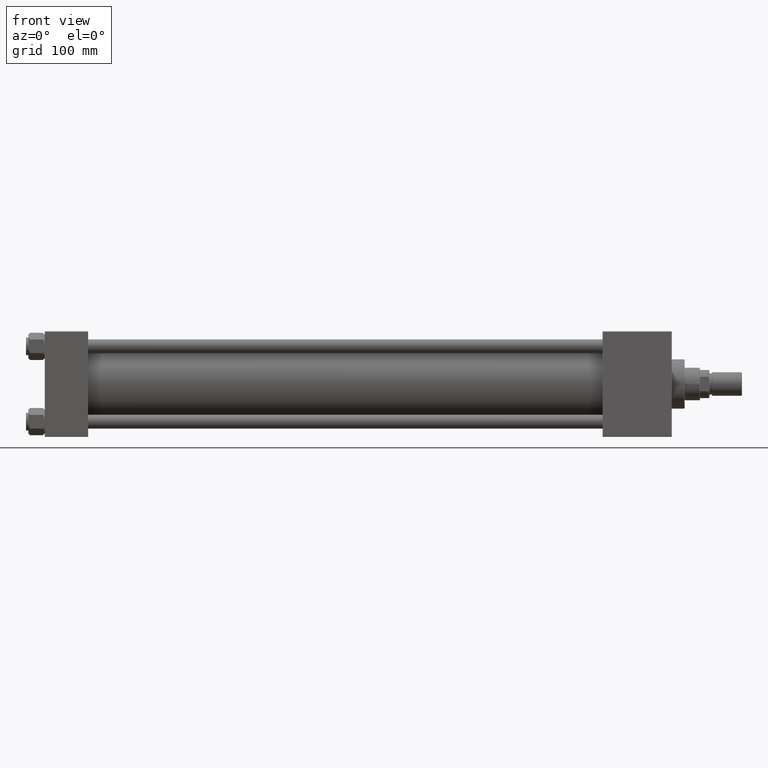
[diagram: clean part render]
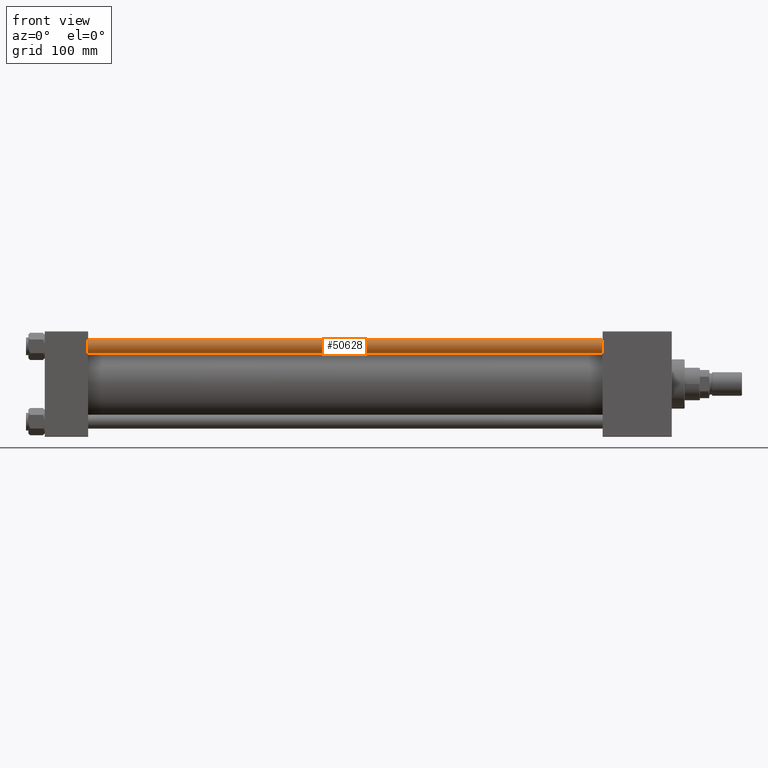
[diagram: same view with one face highlighted and labeled with its STEP entity id]
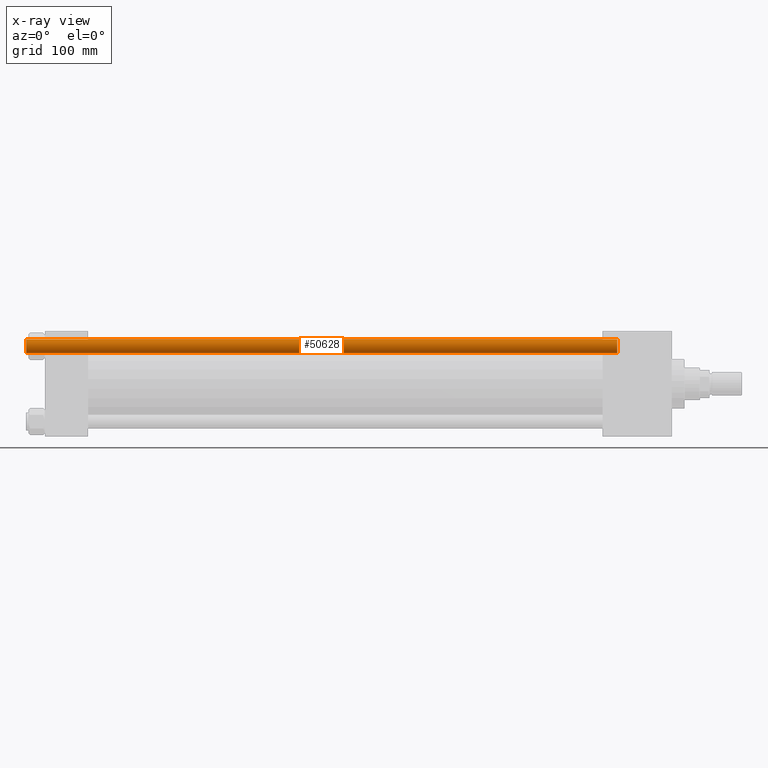
[diagram: x-ray of the same camera — body ghosted, the highlighted face saturated]
A machine part, front view. The second image highlights one B-rep face of the part: STEP entity #50628.
The next image is the same camera in x-ray: the body ghosted, the highlighted face saturated — about 0% of this face is hidden behind the body in this view.
In plain terms, the highlighted cylindrical surface (edge-blend (fillet) strip) has radius 6 mm, axis along (1, 0, -0).
Its self-contained STEP definition (entity closure, byte-faithful):
#40 = AXIS2_PLACEMENT_3D ( 'NONE', #12795, #40783, #21535 ) ;
#1010 = CARTESIAN_POINT ( 'NONE',  ( 0.000000000000000000, 0.000000000000000000, 0.5000000000000559552 ) ) ;
#1730 = VERTEX_POINT ( 'NONE', #18907 ) ;
#2468 = VERTEX_POINT ( 'NONE', #31097 ) ;
#3396 = DIRECTION ( 'NONE',  ( -0.000000000000000000, -0.000000000000000000, -1.000000000000000000 ) ) ;
#5619 = CARTESIAN_POINT ( 'NONE',  ( 6.000000000000000888, 7.347880794884120722E-16, 504.5000000000001705 ) ) ;
#12795 = CARTESIAN_POINT ( 'NONE',  ( 0.000000000000000000, 0.000000000000000000, 505.0000000000000000 ) ) ;
#12946 = CARTESIAN_POINT ( 'NONE',  ( 0.000000000000000000, 0.000000000000000000, 504.5000000000001705 ) ) ;
#15240 = EDGE_CURVE ( 'NONE', #25355, #1730, #16022, .T. ) ;
#16022 = LINE ( 'NONE', #23239, #29972 ) ;
#16371 = AXIS2_PLACEMENT_3D ( 'NONE', #12946, #28617, #36301 ) ;
#18907 = CARTESIAN_POINT ( 'NONE',  ( 6.000000000000000888, 7.347880794884120722E-16, 0.5000000000000559552 ) ) ;
#21535 = DIRECTION ( 'NONE',  ( -1.000000000000000000, 0.000000000000000000, 0.000000000000000000 ) ) ;
#21631 = VERTEX_POINT ( 'NONE', #41566 ) ;
#22502 = ORIENTED_EDGE ( 'NONE', *, *, #25199, .T. ) ;
#23239 = CARTESIAN_POINT ( 'NONE',  ( 6.000000000000000888, 7.347880794884120722E-16, 505.0000000000000000 ) ) ;
#25199 = EDGE_CURVE ( 'NONE', #1730, #2468, #48232, .T. ) ;
#25355 = VERTEX_POINT ( 'NONE', #5619 ) ;
#26306 = EDGE_LOOP ( 'NONE', ( #29273, #43478, #22502, #42675 ) ) ;
#27582 = DIRECTION ( 'NONE',  ( -0.000000000000000000, -0.000000000000000000, -1.000000000000000000 ) ) ;
#28617 = DIRECTION ( 'NONE',  ( 0.000000000000000000, 0.000000000000000000, -1.000000000000000000 ) ) ;
#29273 = ORIENTED_EDGE ( 'NONE', *, *, #43468, .T. ) ;
#29972 = VECTOR ( 'NONE', #27582, 1000.000000000000000 ) ;
#31097 = CARTESIAN_POINT ( 'NONE',  ( -6.000000000000000888, 0.000000000000000000, 0.5000000000000559552 ) ) ;
#34736 = DIRECTION ( 'NONE',  ( -0.000000000000000000, -0.000000000000000000, 1.000000000000000000 ) ) ;
#35933 = VECTOR ( 'NONE', #3396, 1000.000000000000000 ) ;
#36301 = DIRECTION ( 'NONE',  ( 1.000000000000000000, 0.000000000000000000, 0.000000000000000000 ) ) ;
#38342 = LINE ( 'NONE', #49936, #35933 ) ;
#39548 = DIRECTION ( 'NONE',  ( 1.000000000000000000, 0.000000000000000000, 0.000000000000000000 ) ) ;
#40783 = DIRECTION ( 'NONE',  ( -0.000000000000000000, -0.000000000000000000, -1.000000000000000000 ) ) ;
#41566 = CARTESIAN_POINT ( 'NONE',  ( -6.000000000000000888, 0.000000000000000000, 504.5000000000001705 ) ) ;
#41802 = EDGE_CURVE ( 'NONE', #21631, #2468, #38342, .T. ) ;
#41810 = CIRCLE ( 'NONE', #16371, 6.000000000000000888 ) ;
#42473 = AXIS2_PLACEMENT_3D ( 'NONE', #1010, #34736, #39548 ) ;
#42675 = ORIENTED_EDGE ( 'NONE', *, *, #41802, .F. ) ;
#43468 = EDGE_CURVE ( 'NONE', #21631, #25355, #41810, .T. ) ;
#43478 = ORIENTED_EDGE ( 'NONE', *, *, #15240, .T. ) ;
#44908 = FACE_OUTER_BOUND ( 'NONE', #26306, .T. ) ;
#48007 = CYLINDRICAL_SURFACE ( 'NONE', #40, 6.000000000000000888 ) ;
#48232 = CIRCLE ( 'NONE', #42473, 6.000000000000000888 ) ;
#49936 = CARTESIAN_POINT ( 'NONE',  ( -6.000000000000000888, 0.000000000000000000, 505.0000000000000000 ) ) ;
#50628 = ADVANCED_FACE ( 'NONE', ( #44908 ), #48007, .T. ) ;